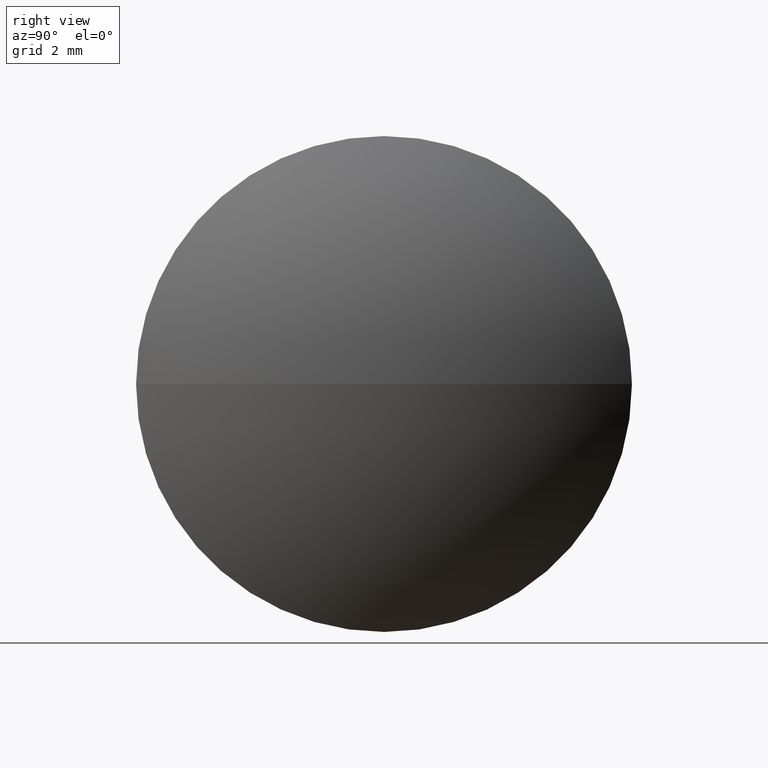
[diagram: clean part render]
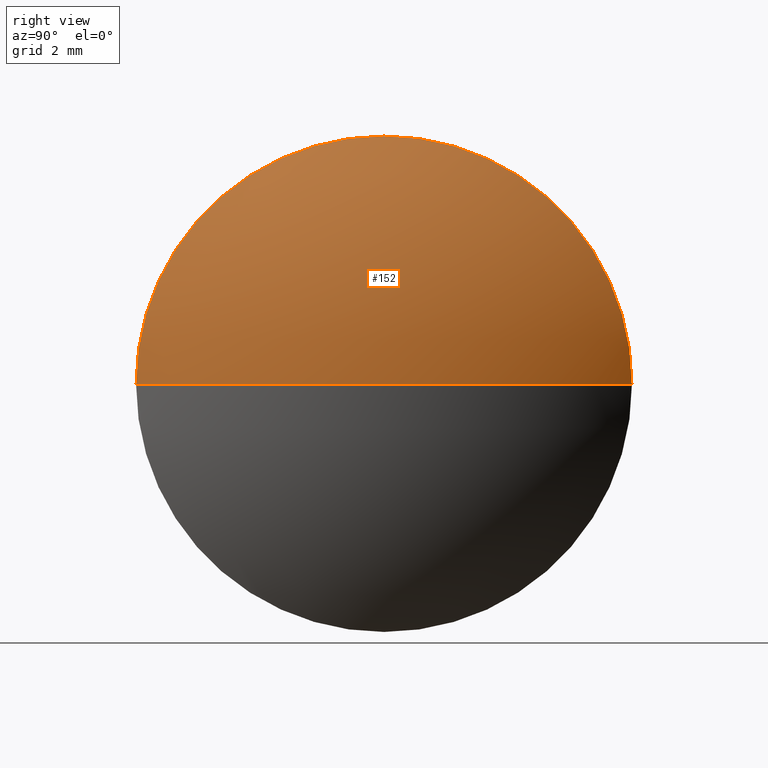
[diagram: same view with one face highlighted and labeled with its STEP entity id]
A machine part, right view. The second image highlights one B-rep face of the part: STEP entity #152.
In plain terms, the highlighted spherical surface has radius 13.6077 mm.
Its self-contained STEP definition (entity closure, byte-faithful):
#2 = VERTEX_POINT ( 'NONE', #249 ) ;
#9 = CARTESIAN_POINT ( 'NONE',  ( 55.21179720338697900, 30.62432316421088900, 0.0000000000000000000 ) ) ;
#12 = SPHERICAL_SURFACE ( 'NONE', #310, 13.60769230769229000 ) ;
#20 = EDGE_CURVE ( 'NONE', #259, #31, #89, .T. ) ;
#26 = DIRECTION ( 'NONE',  ( 0.0000000000000000000, 1.000000000000000000, 0.0000000000000000000 ) ) ;
#31 = VERTEX_POINT ( 'NONE', #163 ) ;
#45 = FACE_OUTER_BOUND ( 'NONE', #139, .T. ) ;
#49 = AXIS2_PLACEMENT_3D ( 'NONE', #195, #224, #327 ) ;
#51 = CARTESIAN_POINT ( 'NONE',  ( 55.21179720338697900, 30.62432316421088900, 0.0000000000000000000 ) ) ;
#53 = DIRECTION ( 'NONE',  ( -0.0000000000000000000, 0.0000000000000000000, -1.000000000000000000 ) ) ;
#69 = AXIS2_PLACEMENT_3D ( 'NONE', #9, #292, #261 ) ;
#78 = DIRECTION ( 'NONE',  ( 0.0000000000000000000, 0.0000000000000000000, 1.000000000000000000 ) ) ;
#89 = CIRCLE ( 'NONE', #49, 13.60769230769229300 ) ;
#111 = CARTESIAN_POINT ( 'NONE',  ( 44.20410489569469100, 30.62432316421088900, 0.0000000000000000000 ) ) ;
#120 = CARTESIAN_POINT ( 'NONE',  ( 57.81179720338698800, 30.62432316421088900, 0.0000000000000000000 ) ) ;
#133 = ORIENTED_EDGE ( 'NONE', *, *, #321, .F. ) ;
#139 = EDGE_LOOP ( 'NONE', ( #218, #248, #133, #162 ) ) ;
#152 = ADVANCED_FACE ( 'NONE', ( #45 ), #12, .T. ) ;
#155 = VERTEX_POINT ( 'NONE', #332 ) ;
#162 = ORIENTED_EDGE ( 'NONE', *, *, #213, .F. ) ;
#163 = CARTESIAN_POINT ( 'NONE',  ( 55.21179720338697900, 22.62432316421089600, -9.797174393178819700E-016 ) ) ;
#195 = CARTESIAN_POINT ( 'NONE',  ( 44.20410489569469100, 30.62432316421088900, 0.0000000000000000000 ) ) ;
#196 = AXIS2_PLACEMENT_3D ( 'NONE', #208, #315, #237 ) ;
#208 = CARTESIAN_POINT ( 'NONE',  ( 44.20410489569469100, 30.62432316421088900, 0.0000000000000000000 ) ) ;
#213 = EDGE_CURVE ( 'NONE', #31, #155, #277, .T. ) ;
#218 = ORIENTED_EDGE ( 'NONE', *, *, #20, .F. ) ;
#224 = DIRECTION ( 'NONE',  ( 0.0000000000000000000, 1.224646799147353200E-016, -1.000000000000000000 ) ) ;
#233 = CIRCLE ( 'NONE', #69, 7.999999999999992900 ) ;
#237 = DIRECTION ( 'NONE',  ( 1.000000000000000000, 0.0000000000000000000, 0.0000000000000000000 ) ) ;
#248 = ORIENTED_EDGE ( 'NONE', *, *, #286, .T. ) ;
#249 = CARTESIAN_POINT ( 'NONE',  ( 55.21179720338697900, 38.62432316421088500, 0.0000000000000000000 ) ) ;
#255 = DIRECTION ( 'NONE',  ( -1.000000000000000000, -0.0000000000000000000, -0.0000000000000000000 ) ) ;
#259 = VERTEX_POINT ( 'NONE', #120 ) ;
#261 = DIRECTION ( 'NONE',  ( 0.0000000000000000000, 0.0000000000000000000, 1.000000000000000000 ) ) ;
#273 = AXIS2_PLACEMENT_3D ( 'NONE', #51, #255, #78 ) ;
#274 = CIRCLE ( 'NONE', #196, 13.60769230769229300 ) ;
#277 = CIRCLE ( 'NONE', #273, 7.999999999999992900 ) ;
#286 = EDGE_CURVE ( 'NONE', #259, #2, #274, .T. ) ;
#292 = DIRECTION ( 'NONE',  ( -1.000000000000000000, -0.0000000000000000000, -0.0000000000000000000 ) ) ;
#310 = AXIS2_PLACEMENT_3D ( 'NONE', #111, #53, #26 ) ;
#315 = DIRECTION ( 'NONE',  ( -0.0000000000000000000, 0.0000000000000000000, 1.000000000000000000 ) ) ;
#321 = EDGE_CURVE ( 'NONE', #155, #2, #233, .T. ) ;
#327 = DIRECTION ( 'NONE',  ( 0.0000000000000000000, 1.000000000000000000, 1.224646799147353000E-016 ) ) ;
#332 = CARTESIAN_POINT ( 'NONE',  ( 55.21179720338697900, 30.62432316421088900, 7.999999999999992900 ) ) ;